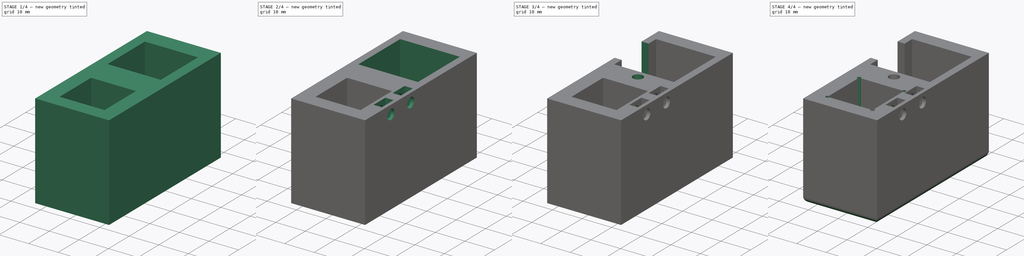
[diagram: build sequence overview — one tinted view per stage of 4, left to right]
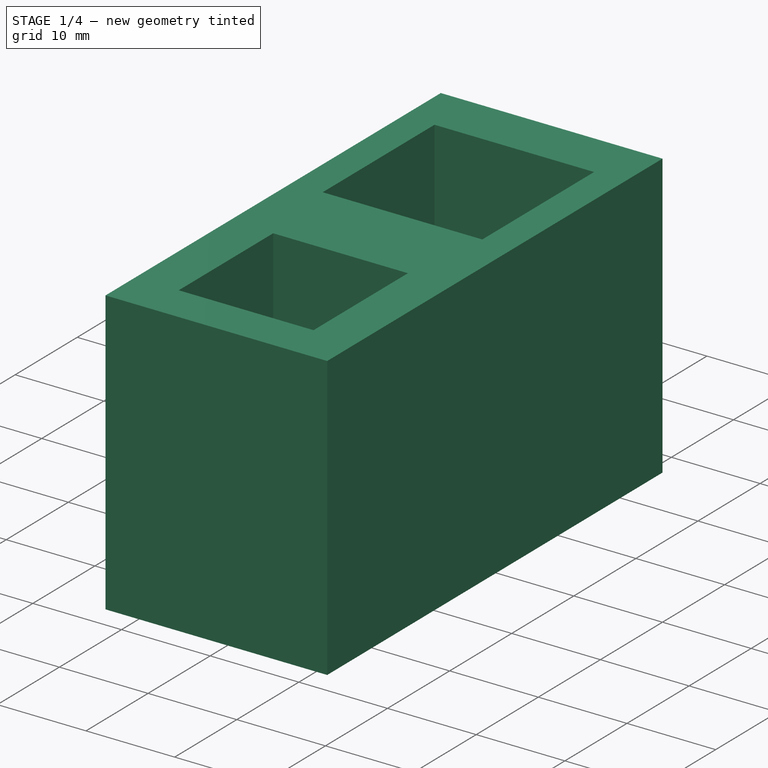
[diagram: stage 1 of 4 — iso view after this stage's code; geometry added in this stage tinted green]
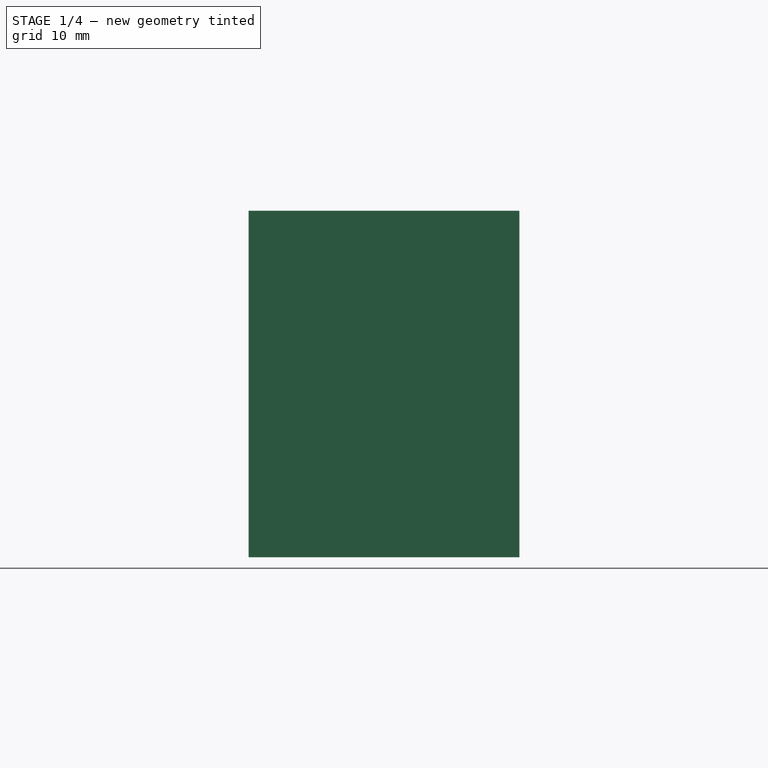
[diagram: stage 1 of 4 — front view after this stage's code; geometry added in this stage tinted green]
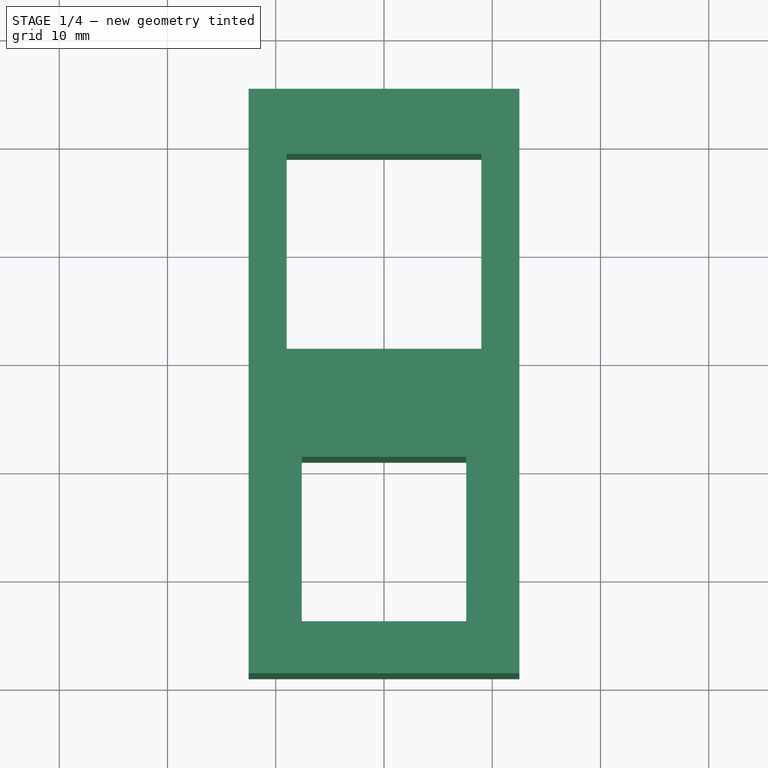
[diagram: stage 1 of 4 — top view after this stage's code; geometry added in this stage tinted green]
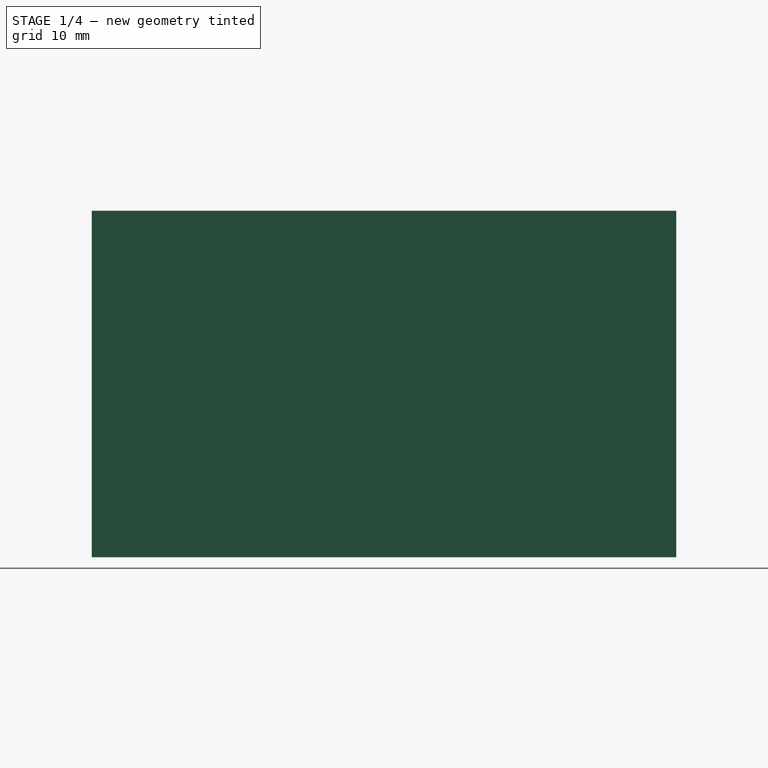
[diagram: stage 1 of 4 — right view after this stage's code; geometry added in this stage tinted green]
FCSTD DOCUMENT  (FreeCAD 0.16R6698 (Git))
Label: pnp head spindle mount
License: All rights reserved
LicenseURL: http://en.wikipedia.org/wiki/All_rights_reserved
objects: Sketcher::SketchObject×9, PartDesign::Pocket×8, PartDesign::Pad×1, PartDesign::Fillet×1
note: 28 computed .brp shape members not serialized (recipe doc carries the construction recipe); baked Part::Feature solids carry a one-line shape summary decoded from their .brp

FEATURE [Sketcher::SketchObject] Sketch
  sketch-geometry (4):
    g0: LineSegment StartX=-12.5 StartY=25 StartZ=0 EndX=12.5 EndY=25 EndZ=0
    g1: LineSegment StartX=12.5 StartY=25 StartZ=0 EndX=12.5 EndY=-29 EndZ=0
    g2: LineSegment StartX=12.5 StartY=-29 StartZ=0 EndX=-12.5 EndY=-29 EndZ=0
    g3: LineSegment StartX=-12.5 StartY=-29 StartZ=0 EndX=-12.5 EndY=25 EndZ=0
  constraints (12):
    c: Coincident(g0,g1)
    c: Coincident(g1,g2)
    c: Coincident(g2,g3)
    c: Coincident(g3,g0)
    c: Horizontal(g0)
    c: Horizontal(g2)
    c: Vertical(g1)
    c: Vertical(g3)
    c: Symmetric(g0,g0,g-2)
    c: DistanceX(g0,g0) = 25
    c: DistanceY(g3,g3) = 54
    c: DistanceY(g-1,g0) = 25
FEATURE [PartDesign::Pad] Pad
  Length = 32
  Length2 = 100
  Sketch = -> Sketch
  Type = 0
FEATURE [Sketcher::SketchObject] Sketch001
  Placement = pos=(0,0,0) rot=(1,0,0;3.14159rad)
  Support = -> Pad [Face5]
  sketch-geometry (8):
    g0: LineSegment StartX=-7.6 StartY=24.2 StartZ=0 EndX=7.6 EndY=24.2 EndZ=0
    g1: LineSegment StartX=7.6 StartY=24.2 StartZ=0 EndX=7.6 EndY=9 EndZ=0
    g2: LineSegment StartX=7.6 StartY=9 StartZ=0 EndX=-7.6 EndY=9 EndZ=0
    g3: LineSegment StartX=-7.6 StartY=9 StartZ=0 EndX=-7.6 EndY=24.2 EndZ=0
    g4: LineSegment StartX=-9 StartY=-0.982677 StartZ=0 EndX=9 EndY=-0.982677 EndZ=0
    g5: LineSegment StartX=9 StartY=-0.982677 StartZ=0 EndX=9 EndY=-18.9827 EndZ=0
    g6: LineSegment StartX=9 StartY=-18.9827 StartZ=0 EndX=-9 EndY=-18.9827 EndZ=0
    g7: LineSegment StartX=-9 StartY=-18.9827 StartZ=0 EndX=-9 EndY=-0.982677 EndZ=0
  constraints (22):
    c: Coincident(g0,g1)
    c: Coincident(g1,g2)
    c: Coincident(g2,g3)
    c: Coincident(g3,g0)
    c: Horizontal(g0)
    c: Horizontal(g2)
    c: Vertical(g1)
    c: Vertical(g3)
    c: Equal(g0,g3)
    c: DistanceX(g0,g0) = 15.2
    c: Symmetric(g0,g0,g-2)
    c: Coincident(g4,g5)
    c: Coincident(g5,g6)
    c: Coincident(g6,g7)
    c: Coincident(g7,g4)
    c: Horizontal(g4)
    c: Horizontal(g6)
    c: Vertical(g5)
    c: Vertical(g7)
    c: Equal(g4,g7)
    c: DistanceX(g4,g4) = 18
    c: Symmetric(g4,g4,g-2)
FEATURE [PartDesign::Pocket] Pocket
  Length = 5
  Sketch = -> Sketch001
  Type = 1
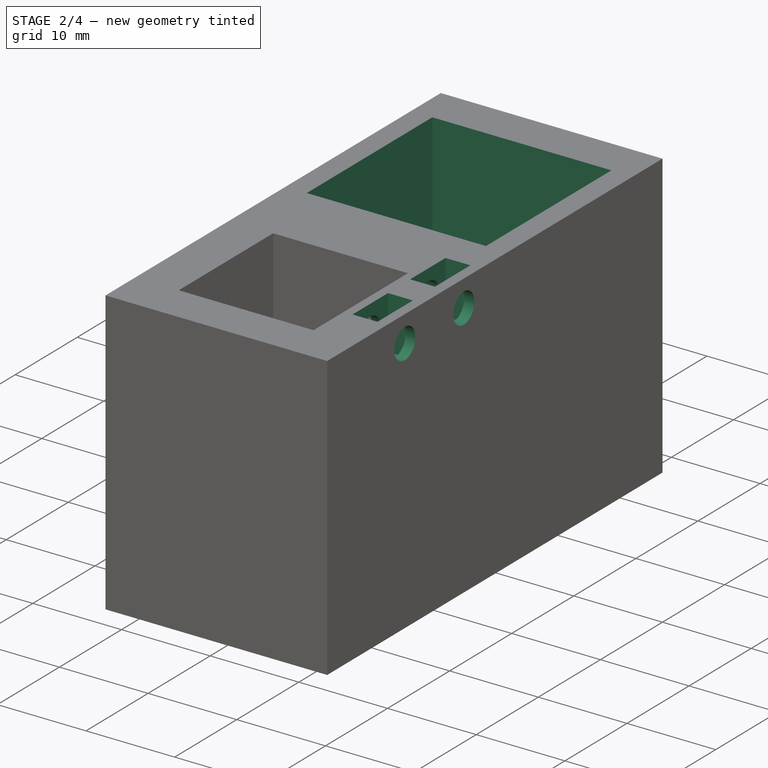
[diagram: stage 2 of 4 — iso view after this stage's code; geometry added in this stage tinted green]
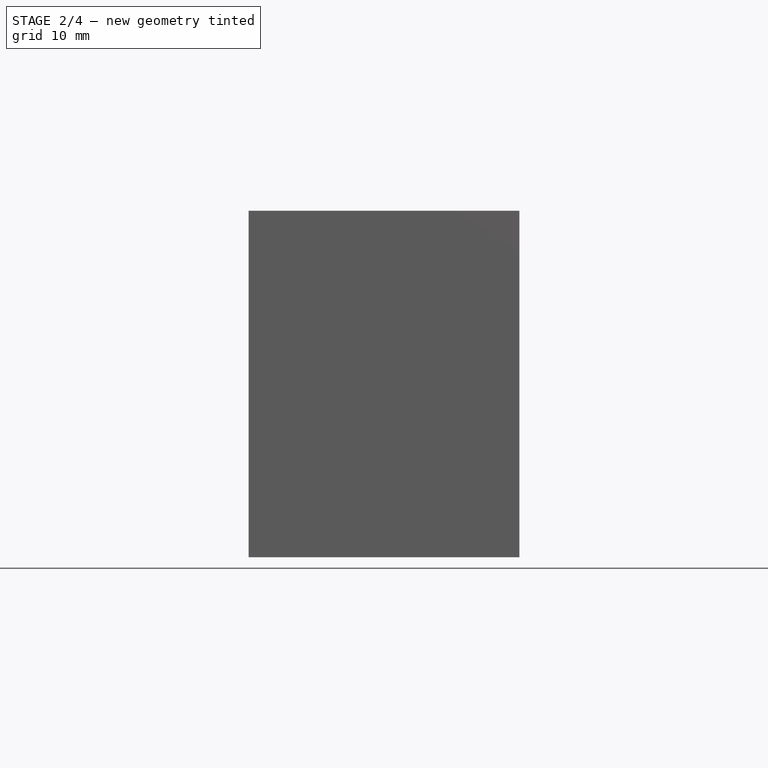
[diagram: stage 2 of 4 — front view after this stage's code; geometry added in this stage tinted green]
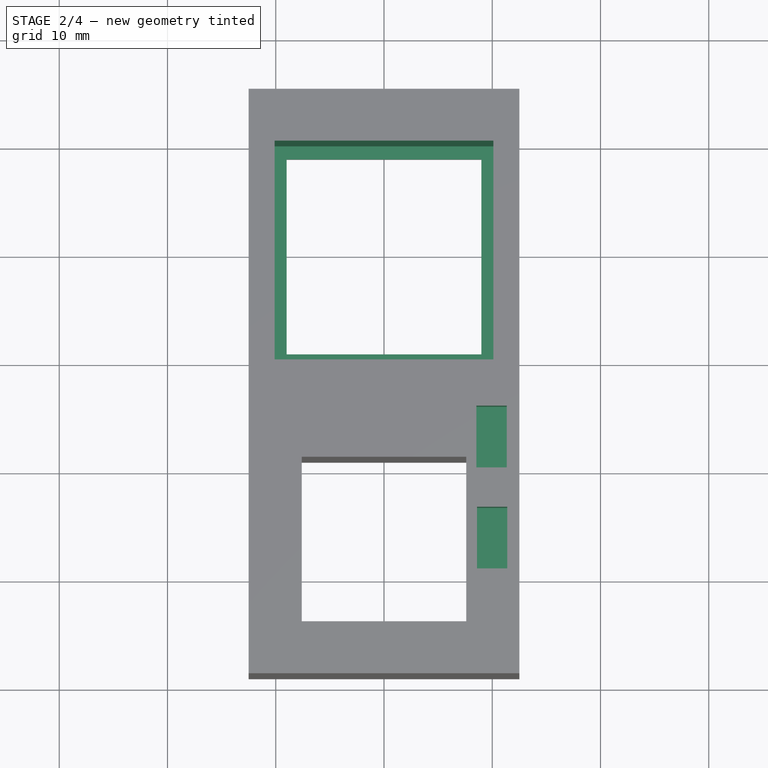
[diagram: stage 2 of 4 — top view after this stage's code; geometry added in this stage tinted green]
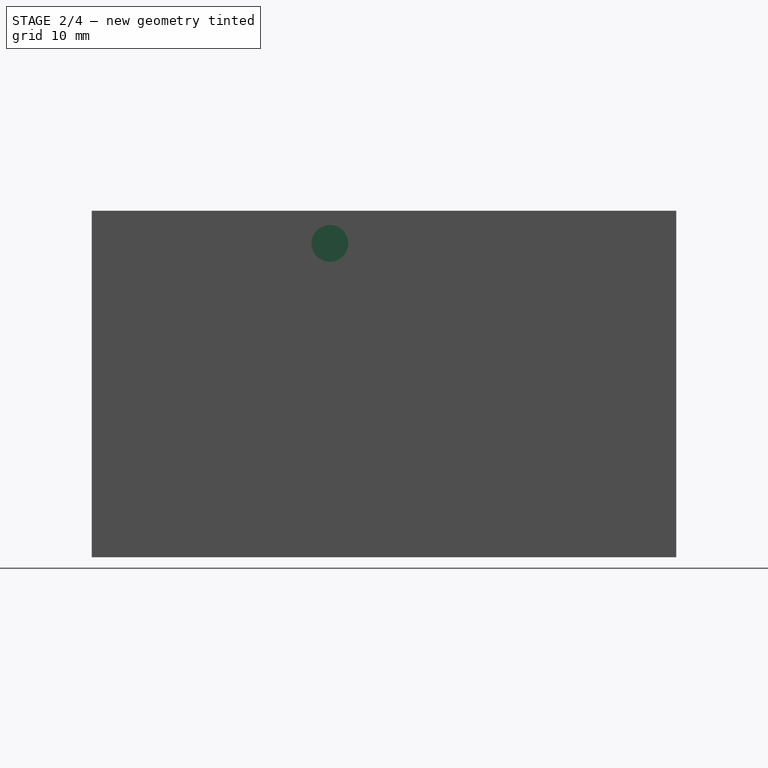
[diagram: stage 2 of 4 — right view after this stage's code; geometry added in this stage tinted green]
FEATURE [Sketcher::SketchObject] Sketch002
  Placement = pos=(0,0,32) rot=(0,0,1;0rad)
  Support = -> Pocket [Face5]
  sketch-geometry (4):
    g0: LineSegment StartX=-10.1 StartY=20.2 StartZ=0 EndX=10.1 EndY=20.2 EndZ=0
    g1: LineSegment StartX=10.1 StartY=20.2 StartZ=0 EndX=10.1 EndY=0 EndZ=0
    g2: LineSegment StartX=10.1 StartY=0 StartZ=0 EndX=-10.1 EndY=0 EndZ=0
    g3: LineSegment StartX=-10.1 StartY=0 StartZ=0 EndX=-10.1 EndY=20.2 EndZ=0
  constraints (11):
    c: Coincident(g0,g1)
    c: Coincident(g1,g2)
    c: Coincident(g2,g3)
    c: Coincident(g3,g0)
    c: Horizontal(g0)
    c: Horizontal(g2)
    c: Vertical(g1)
    c: Vertical(g3)
    c: Equal(g0,g3)
    c: DistanceX(g0,g0) = 20.2
    c: Symmetric(g0,g0,g-2)
FEATURE [PartDesign::Pocket] Pocket001
  Length = 30
  Sketch = -> Sketch002
  Type = 0
FEATURE [Sketcher::SketchObject] Sketch005
  Placement = pos=(0,0,32) rot=(0,0,1;0rad)
  Support = -> Pocket001 [Face5]
  sketch-geometry (16):
    g0: LineSegment StartX=8.53536 StartY=-4.28151 StartZ=0 EndX=11.3354 EndY=-4.28151 EndZ=0
    g1: LineSegment StartX=11.3354 StartY=-4.28151 StartZ=0 EndX=11.3354 EndY=-9.98151 EndZ=0
    g2: LineSegment StartX=11.3354 StartY=-9.98151 StartZ=0 EndX=8.53536 EndY=-9.98151 EndZ=0
    g3: LineSegment StartX=8.53536 StartY=-9.98151 StartZ=0 EndX=8.53536 EndY=-4.28151 EndZ=0
    g4: LineSegment [constr] StartX=6 StartY=-5.33648 StartZ=0 EndX=14 EndY=-5.33648 EndZ=0
    g5: LineSegment [constr] StartX=14 StartY=-5.33648 StartZ=0 EndX=14 EndY=-8.73648 EndZ=0
    g6: LineSegment [constr] StartX=14 StartY=-8.73648 StartZ=0 EndX=6 EndY=-8.73648 EndZ=0
    g7: LineSegment [constr] StartX=6 StartY=-8.73648 StartZ=0 EndX=6 EndY=-5.33648 EndZ=0
    g8: LineSegment [constr] StartX=4 StartY=-18.1365 StartZ=0 EndX=14.683 EndY=-18.1365 EndZ=0
    g9: LineSegment [constr] StartX=14.683 StartY=-18.1365 StartZ=0 EndX=14.683 EndY=-14.7365 EndZ=0
    g10: LineSegment [constr] StartX=14.683 StartY=-14.7365 StartZ=0 EndX=4 EndY=-14.7365 EndZ=0
    g11: LineSegment [constr] StartX=4 StartY=-14.7365 StartZ=0 EndX=4 EndY=-18.1365 EndZ=0
    g12: LineSegment StartX=8.58724 StartY=-13.6189 StartZ=0 EndX=11.3872 EndY=-13.6189 EndZ=0
    g13: LineSegment StartX=11.3872 StartY=-13.6189 StartZ=0 EndX=11.3872 EndY=-19.3189 EndZ=0
    g14: LineSegment StartX=11.3872 StartY=-19.3189 StartZ=0 EndX=8.58724 EndY=-19.3189 EndZ=0
    g15: LineSegment StartX=8.58724 StartY=-19.3189 StartZ=0 EndX=8.58724 EndY=-13.6189 EndZ=0
  constraints (39):
    c: Coincident(g0,g1)
    c: Coincident(g1,g2)
    c: Coincident(g2,g3)
    c: Coincident(g3,g0)
    c: Horizontal(g0)
    c: Horizontal(g2)
    c: Vertical(g1)
    c: Vertical(g3)
    c: DistanceX(g0,g0) = 2.8
    c: DistanceY(g3,g3) = 5.7
    c: Coincident(g4,g5)
    c: Coincident(g5,g6)
    c: Coincident(g6,g7)
    c: Coincident(g7,g4)
    c: Horizontal(g4)
    c: Horizontal(g6)
    c: Vertical(g5)
    c: Vertical(g7)
    c: DistanceY(g5,g5) = 3.4
    c: Coincident(g8,g9)
    c: Coincident(g9,g10)
    c: Coincident(g10,g11)
    c: Coincident(g11,g8)
    c: Horizontal(g8)
    c: Horizontal(g10)
    c: Vertical(g9)
    c: Vertical(g11)
    c: DistanceY(g9,g9) = 3.4
    c: DistanceY(g9,g5) = 6
    c: Coincident(g12,g13)
    c: Coincident(g13,g14)
    c: Coincident(g14,g15)
    c: Coincident(g15,g12)
    c: Horizontal(g12)
    c: Horizontal(g14)
    c: Vertical(g13)
    c: Vertical(g15)
    c: Equal(g0,g12)
    c: Equal(g15,g3)
FEATURE [PartDesign::Pocket] Pocket002
  Length = 6
  Sketch = -> Sketch005
  Type = 0
FEATURE [Sketcher::SketchObject] Sketch003
  Placement = pos=(12.5,0,0) rot=(0.57735,0.57735,0.57735;2.0944rad)
  Support = -> Pocket002 [Face3]
  sketch-geometry (3):
    g0: Circle CenterX=-6.99803 CenterY=28.9902 CenterZ=0 NormalX=0 NormalY=0 NormalZ=1 Radius=1.7
    g1: Circle CenterX=-16.5036 CenterY=29.0113 CenterZ=0 NormalX=0 NormalY=0 NormalZ=1 Radius=1.7
    g2: LineSegment [constr] StartX=-9.00035 StartY=4 StartZ=0 EndX=-15.0003 EndY=4 EndZ=0
  constraints (3):
    c: Radius(g0) = 1.7
    c: Horizontal(g2)
    c: Equal(g1,g0)
FEATURE [PartDesign::Pocket] Pocket003
  Length = 6
  Sketch = -> Sketch003
  Type = 0
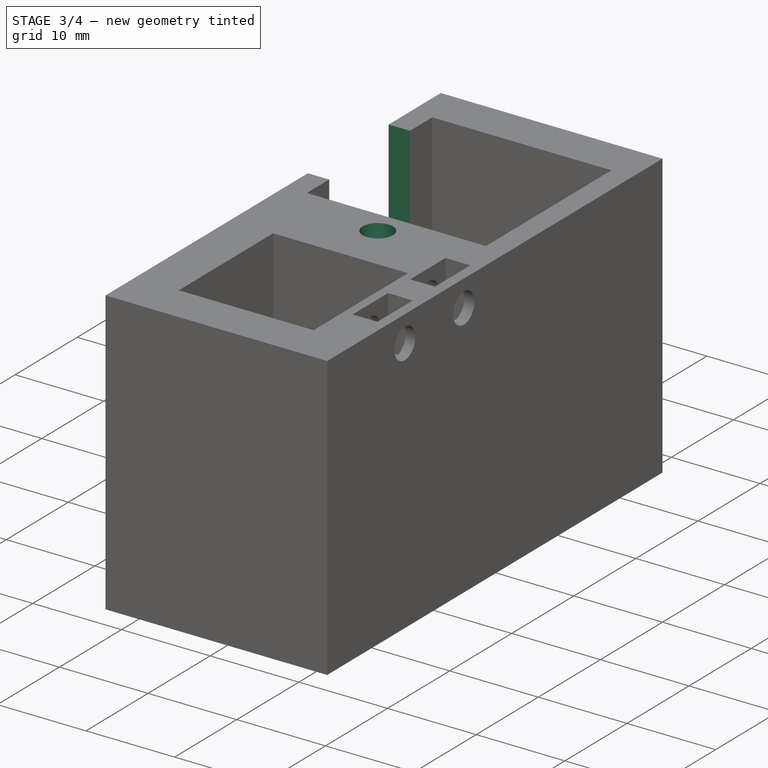
[diagram: stage 3 of 4 — iso view after this stage's code; geometry added in this stage tinted green]
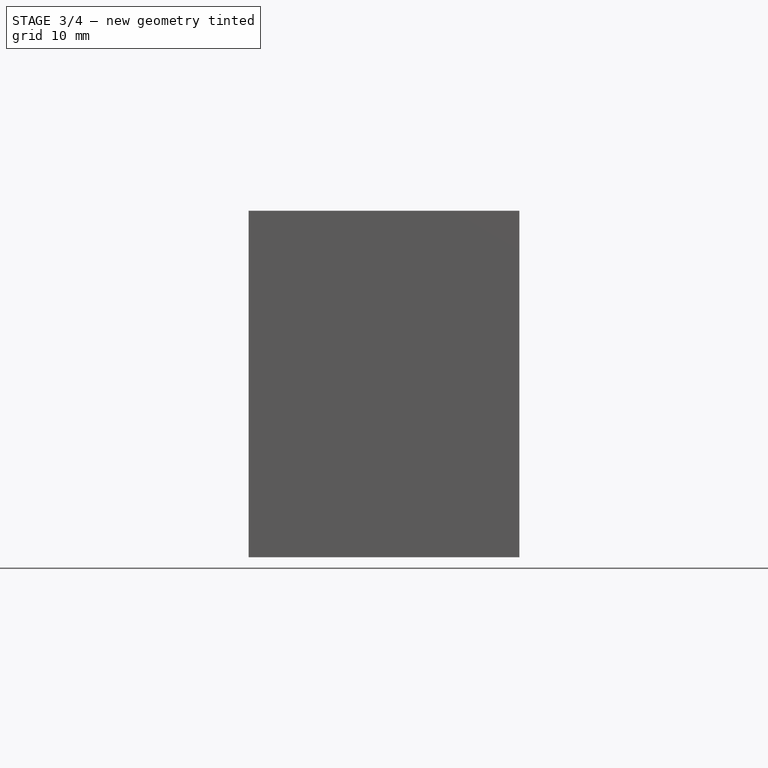
[diagram: stage 3 of 4 — front view after this stage's code; geometry added in this stage tinted green]
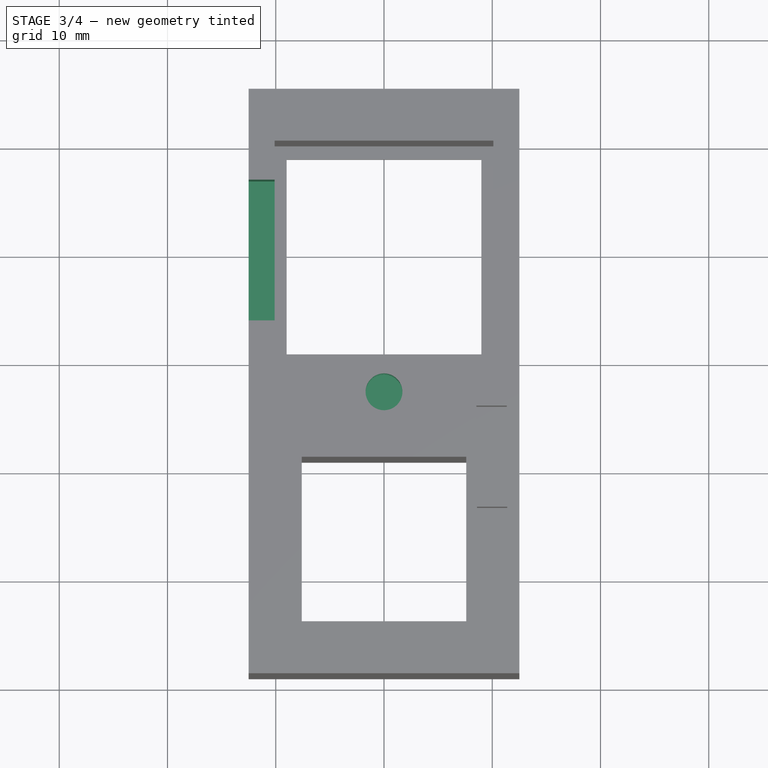
[diagram: stage 3 of 4 — top view after this stage's code; geometry added in this stage tinted green]
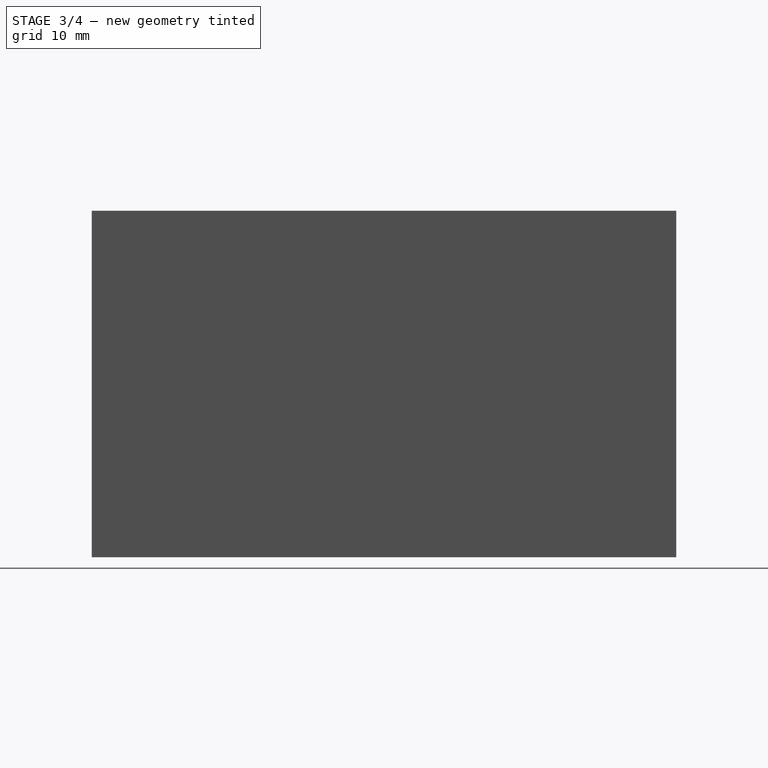
[diagram: stage 3 of 4 — right view after this stage's code; geometry added in this stage tinted green]
FEATURE [Sketcher::SketchObject] Sketch006
  Placement = pos=(0,0,0) rot=(0,0.707107,0.707107;3.14159rad)
  Support = -> Pocket003 [Face25]
  sketch-geometry (4):
    g0: LineSegment StartX=-2.85 StartY=30.0042 StartZ=0 EndX=2.85 EndY=30.0042 EndZ=0
    g1: LineSegment StartX=2.85 StartY=30.0042 StartZ=0 EndX=2.85 EndY=27.2042 EndZ=0
    g2: LineSegment StartX=2.85 StartY=27.2042 StartZ=0 EndX=-2.85 EndY=27.2042 EndZ=0
    g3: LineSegment StartX=-2.85 StartY=27.2042 StartZ=0 EndX=-2.85 EndY=30.0042 EndZ=0
  constraints (11):
    c: Coincident(g0,g1)
    c: Coincident(g1,g2)
    c: Coincident(g2,g3)
    c: Coincident(g3,g0)
    c: Horizontal(g0)
    c: Horizontal(g2)
    c: Vertical(g1)
    c: Vertical(g3)
    c: DistanceX(g0,g0) = 5.7
    c: DistanceY(g3,g3) = 2.8
    c: Symmetric(g0,g0,g-2)
FEATURE [PartDesign::Pocket] Pocket004
  Length = 6
  Sketch = -> Sketch006
  Type = 0
FEATURE [Sketcher::SketchObject] Sketch004
  Placement = pos=(0,0,32) rot=(0,0,1;0rad)
  Support = -> Pocket004 [Face5]
  sketch-geometry (2):
    g0: Circle CenterX=0 CenterY=-3 CenterZ=0 NormalX=0 NormalY=0 NormalZ=1 Radius=1.7
    g1: Circle [constr] CenterX=0 CenterY=-3 CenterZ=0 NormalX=0 NormalY=0 NormalZ=1 Radius=4
  constraints (3):
    c: PointOnObject(g0,g-2)
    c: Radius(g0) = 1.7
    c: Radius(g1) = 4
FEATURE [PartDesign::Pocket] Pocket005
  Length = 6
  Sketch = -> Sketch004
  Type = 0
FEATURE [Sketcher::SketchObject] Sketch007
  ExternalGeometry = -> [Pocket005]
  Placement = pos=(0,0,32) rot=(0,0,1;0rad)
  Support = -> Pocket005 [Face5]
  sketch-geometry (4):
    g0: LineSegment StartX=-13 StartY=16.6 StartZ=0 EndX=-9 EndY=16.6 EndZ=0
    g1: LineSegment StartX=-9 StartY=16.6 StartZ=0 EndX=-9 EndY=3.6 EndZ=0
    g2: LineSegment StartX=-9 StartY=3.6 StartZ=0 EndX=-13 EndY=3.6 EndZ=0
    g3: LineSegment StartX=-13 StartY=3.6 StartZ=0 EndX=-13 EndY=16.6 EndZ=0
  constraints (10):
    c: Coincident(g0,g1)
    c: Coincident(g1,g2)
    c: Coincident(g2,g3)
    c: Coincident(g3,g0)
    c: Horizontal(g0)
    c: Horizontal(g2)
    c: Vertical(g1)
    c: Vertical(g3)
    c: DistanceY(g1,g1) = 13
    c: DistanceY(g0,g-3) = 3.6
FEATURE [PartDesign::Pocket] Pocket006
  Length = 10
  Sketch = -> Sketch007
  Type = 0
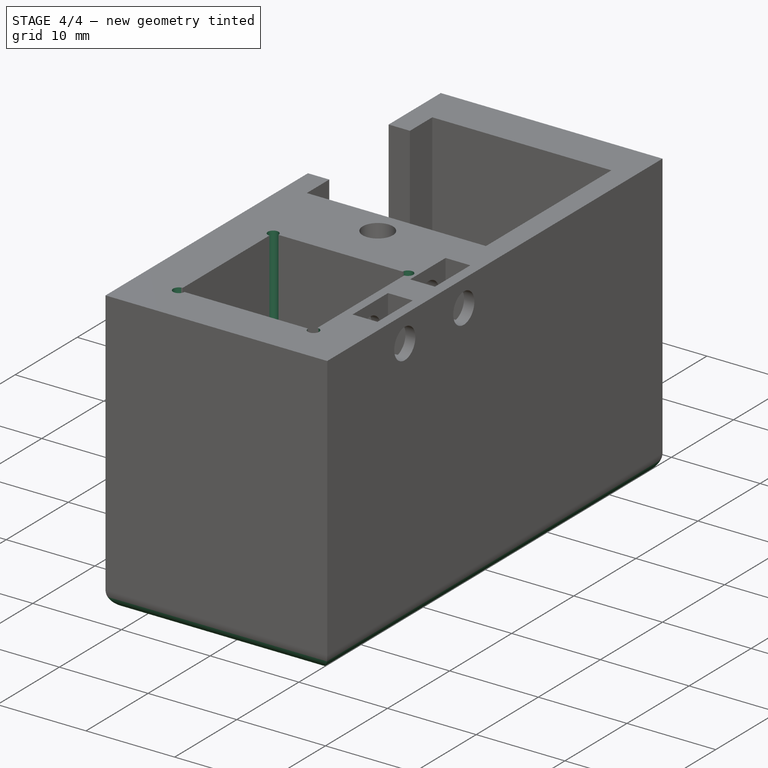
[diagram: stage 4 of 4 — iso view after this stage's code; geometry added in this stage tinted green]
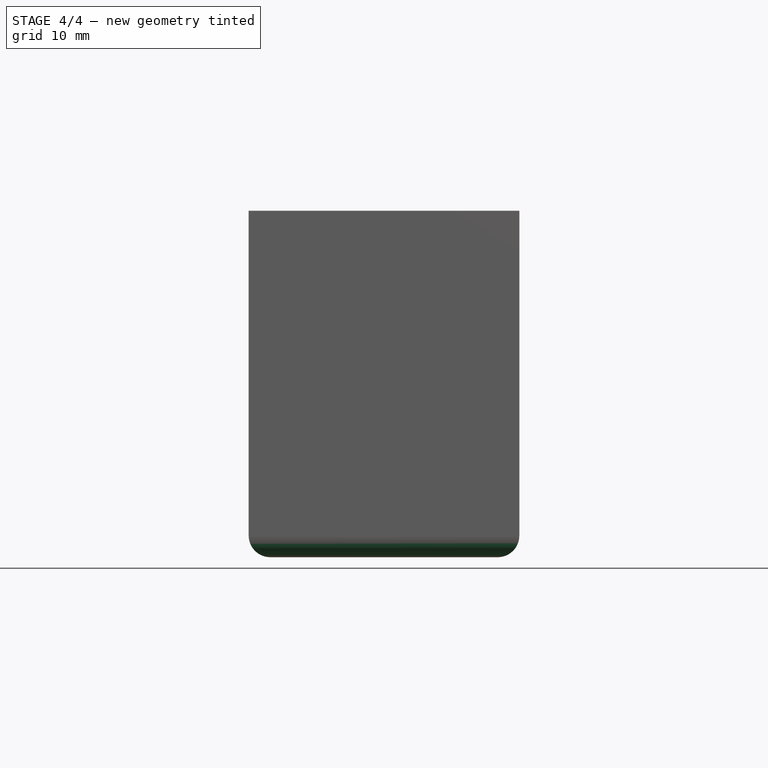
[diagram: stage 4 of 4 — front view after this stage's code; geometry added in this stage tinted green]
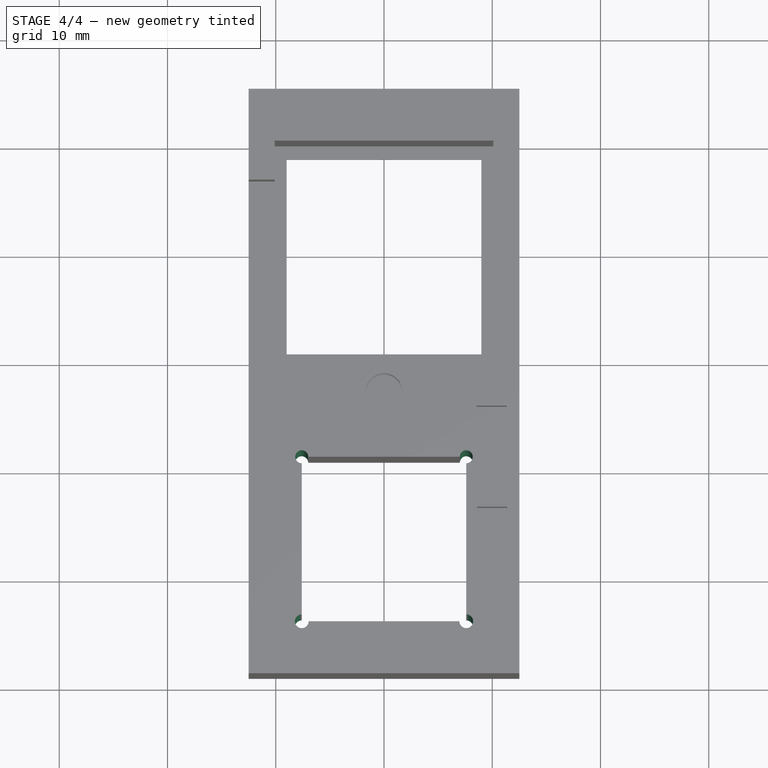
[diagram: stage 4 of 4 — top view after this stage's code; geometry added in this stage tinted green]
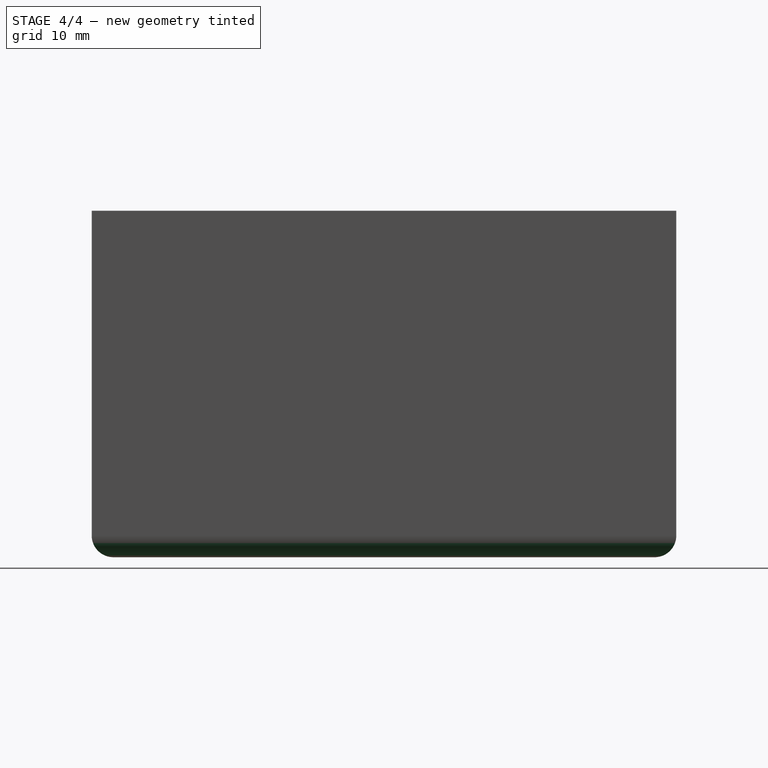
[diagram: stage 4 of 4 — right view after this stage's code; geometry added in this stage tinted green]
FEATURE [PartDesign::Fillet] Fillet
  Base = -> Pocket006 [Edge12,Edge17,Edge5,Edge3]
  Radius = 2
FEATURE [Sketcher::SketchObject] Sketch008
  ExternalGeometry = -> [Fillet]
  Placement = pos=(0,0,0) rot=(1,0,0;3.14159rad)
  Support = -> Fillet [Face11]
  sketch-geometry (4):
    g0: Circle CenterX=-7.6 CenterY=24.2 CenterZ=0 NormalX=0 NormalY=0 NormalZ=1 Radius=0.632456
    g1: Circle CenterX=7.6 CenterY=24.2 CenterZ=0 NormalX=0 NormalY=0 NormalZ=1 Radius=0.632456
    g2: Circle CenterX=7.6 CenterY=9 CenterZ=0 NormalX=0 NormalY=0 NormalZ=1 Radius=0.6
    g3: Circle CenterX=-7.6 CenterY=9 CenterZ=0 NormalX=0 NormalY=0 NormalZ=1 Radius=0.6
  constraints (3):
    c: Coincident(g1,g-3)
    c: Coincident(g2,g-4)
    c: Coincident(g3,g-4)
FEATURE [PartDesign::Pocket] Pocket007
  Length = 5
  Sketch = -> Sketch008
  Type = 1
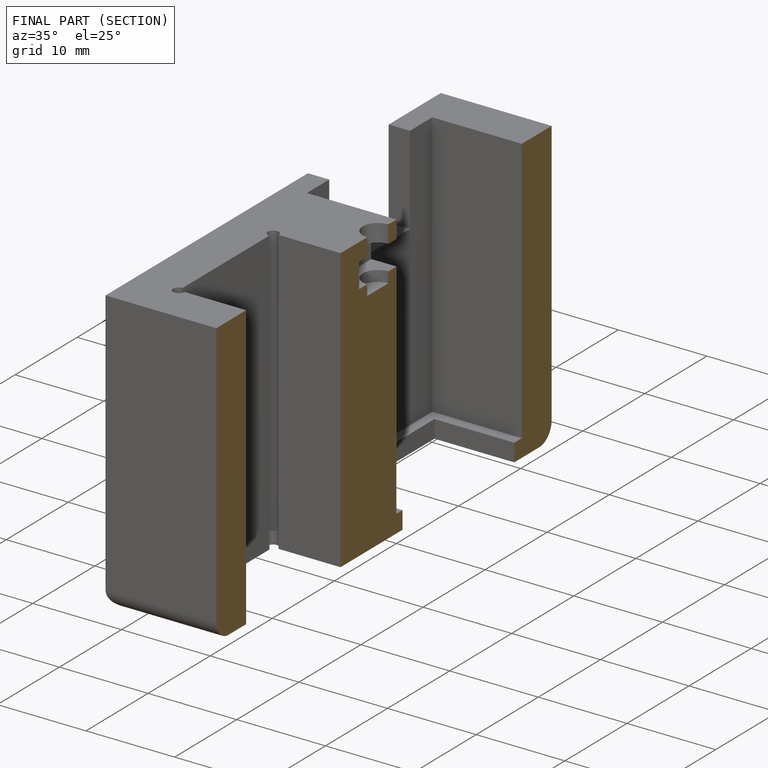
[diagram: finished part — half-section view (interior)]
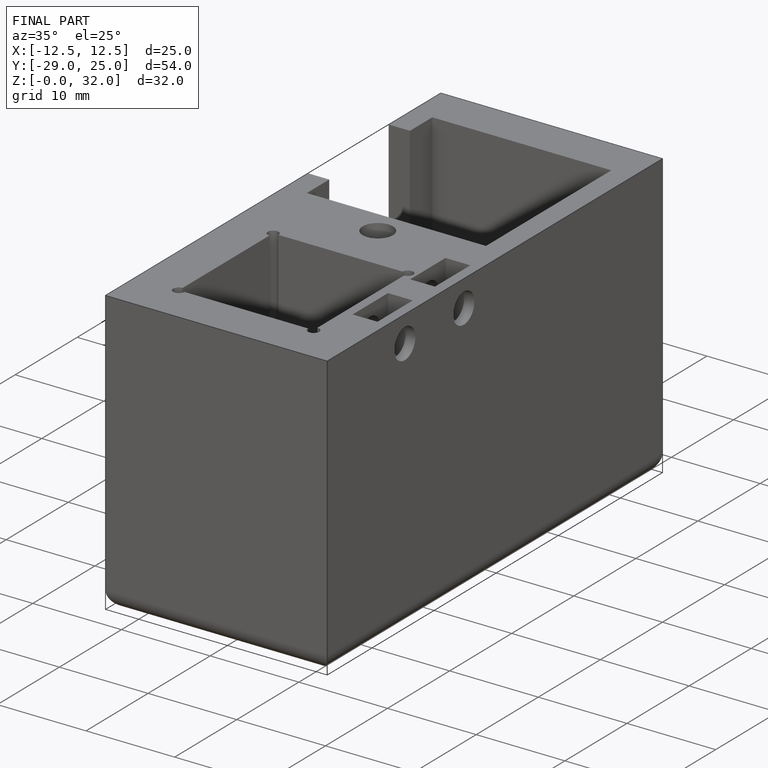
[diagram: finished part — iso view with bounding-box wireframe]
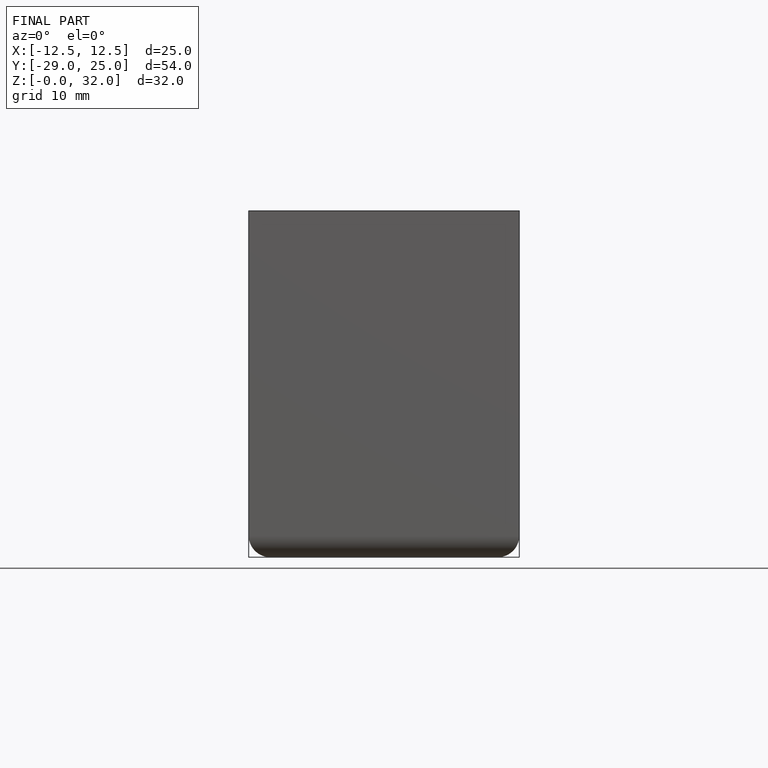
[diagram: finished part — front view with bounding-box wireframe]
